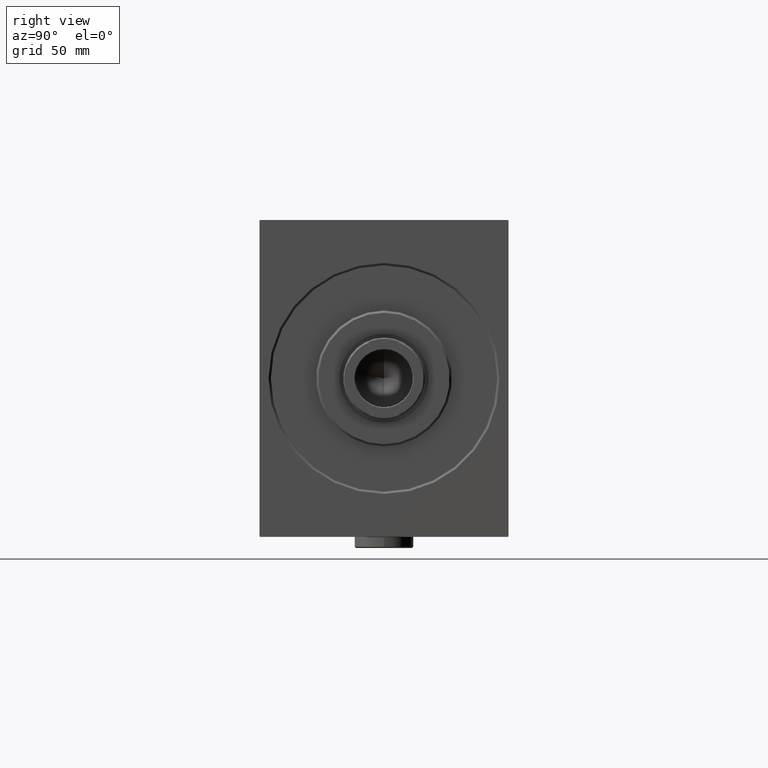
[diagram: clean part render]
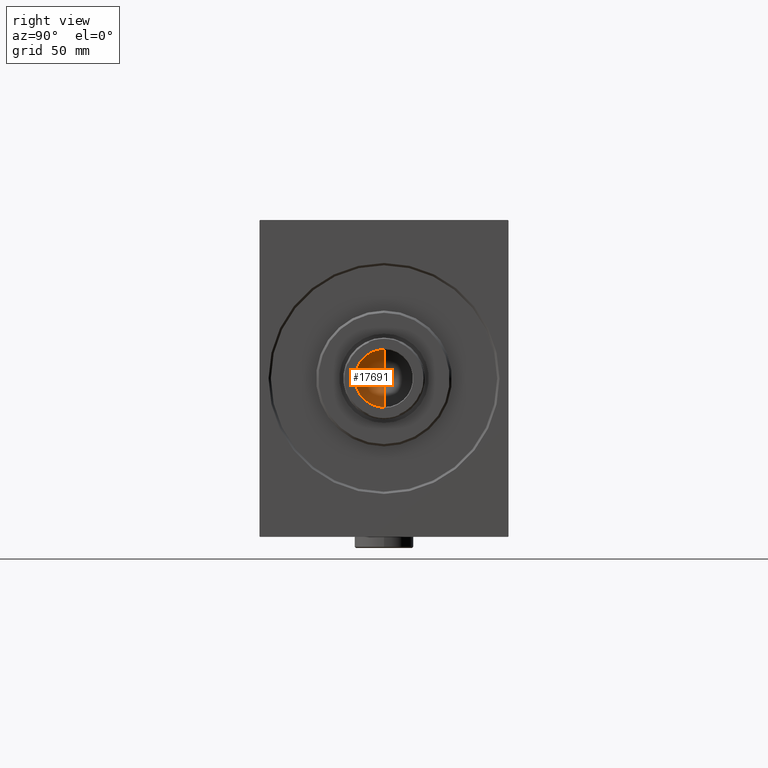
[diagram: same view with one face highlighted and labeled with its STEP entity id]
A machine part, right view. The second image highlights one B-rep face of the part: STEP entity #17691.
In plain terms, the highlighted conical surface has half-angle 59 deg.
Its self-contained STEP definition (entity closure, byte-faithful):
#132 = DIRECTION ( 'NONE',  ( -0.000000000000000000, -0.000000000000000000, 1.000000000000000000 ) ) ;
#583 = CARTESIAN_POINT ( 'NONE',  ( -12.74999999999999467, 1.561424668912874519E-15, 214.0000000000000000 ) ) ;
#1363 = ORIENTED_EDGE ( 'NONE', *, *, #29891, .F. ) ;
#6807 = DIRECTION ( 'NONE',  ( 0.8571673007021118895, 0.000000000000000000, 0.5150380749100549327 ) ) ;
#7047 = EDGE_LOOP ( 'NONE', ( #1363, #39365, #27041 ) ) ;
#7233 = DIRECTION ( 'NONE',  ( -0.000000000000000000, -0.000000000000000000, 1.000000000000000000 ) ) ;
#12490 = CARTESIAN_POINT ( 'NONE',  ( -12.74999999999999467, 1.561424668912874519E-15, 214.0000000000000000 ) ) ;
#12972 = CARTESIAN_POINT ( 'NONE',  ( -1.026246296720136938E-14, 0.000000000000000000, 206.3390271073986071 ) ) ;
#13837 = DIRECTION ( 'NONE',  ( 1.000000000000000000, 0.000000000000000000, 0.000000000000000000 ) ) ;
#14811 = VECTOR ( 'NONE', #6807, 1000.000000000000000 ) ;
#16920 = VERTEX_POINT ( 'NONE', #12972 ) ;
#17691 = ADVANCED_FACE ( 'NONE', ( #44242 ), #26699, .F. ) ;
#17793 = AXIS2_PLACEMENT_3D ( 'NONE', #30873, #132, #13837 ) ;
#21238 = VERTEX_POINT ( 'NONE', #583 ) ;
#23257 = CARTESIAN_POINT ( 'NONE',  ( 12.74999999999999467, 0.000000000000000000, 214.0000000000000000 ) ) ;
#23860 = AXIS2_PLACEMENT_3D ( 'NONE', #24286, #7233, #27647 ) ;
#24286 = CARTESIAN_POINT ( 'NONE',  ( 0.000000000000000000, 0.000000000000000000, 214.0000000000000000 ) ) ;
#26176 = DIRECTION ( 'NONE',  ( -0.8571673007021118895, 1.049727191138618079E-16, 0.5150380749100549327 ) ) ;
#26699 = CONICAL_SURFACE ( 'NONE', #23860, 12.74999999999999467, 1.029744258676653645 ) ;
#27041 = ORIENTED_EDGE ( 'NONE', *, *, #36705, .T. ) ;
#27647 = DIRECTION ( 'NONE',  ( 1.000000000000000000, 0.000000000000000000, 0.000000000000000000 ) ) ;
#29607 = EDGE_CURVE ( 'NONE', #16920, #21238, #43208, .T. ) ;
#29891 = EDGE_CURVE ( 'NONE', #16920, #34290, #44264, .T. ) ;
#30873 = CARTESIAN_POINT ( 'NONE',  ( 0.000000000000000000, 0.000000000000000000, 214.0000000000000000 ) ) ;
#33726 = CARTESIAN_POINT ( 'NONE',  ( 12.74999999999999467, 0.000000000000000000, 214.0000000000000000 ) ) ;
#34290 = VERTEX_POINT ( 'NONE', #23257 ) ;
#36705 = EDGE_CURVE ( 'NONE', #21238, #34290, #41374, .T. ) ;
#39365 = ORIENTED_EDGE ( 'NONE', *, *, #29607, .T. ) ;
#41374 = CIRCLE ( 'NONE', #17793, 12.74999999999999467 ) ;
#42751 = VECTOR ( 'NONE', #26176, 1000.000000000000000 ) ;
#43208 = LINE ( 'NONE', #12490, #42751 ) ;
#44242 = FACE_OUTER_BOUND ( 'NONE', #7047, .T. ) ;
#44264 = LINE ( 'NONE', #33726, #14811 ) ;